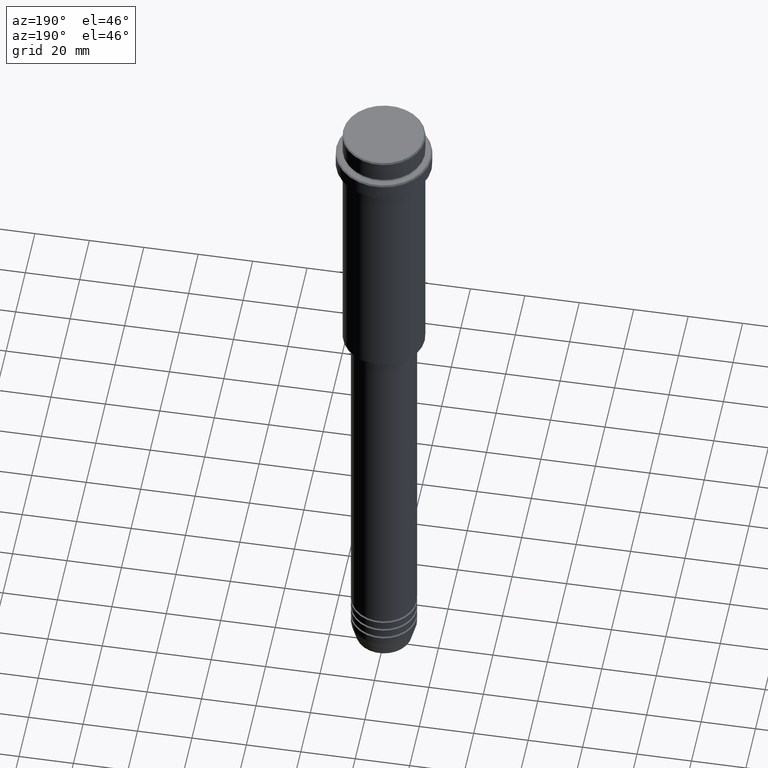
[diagram: clean part render]
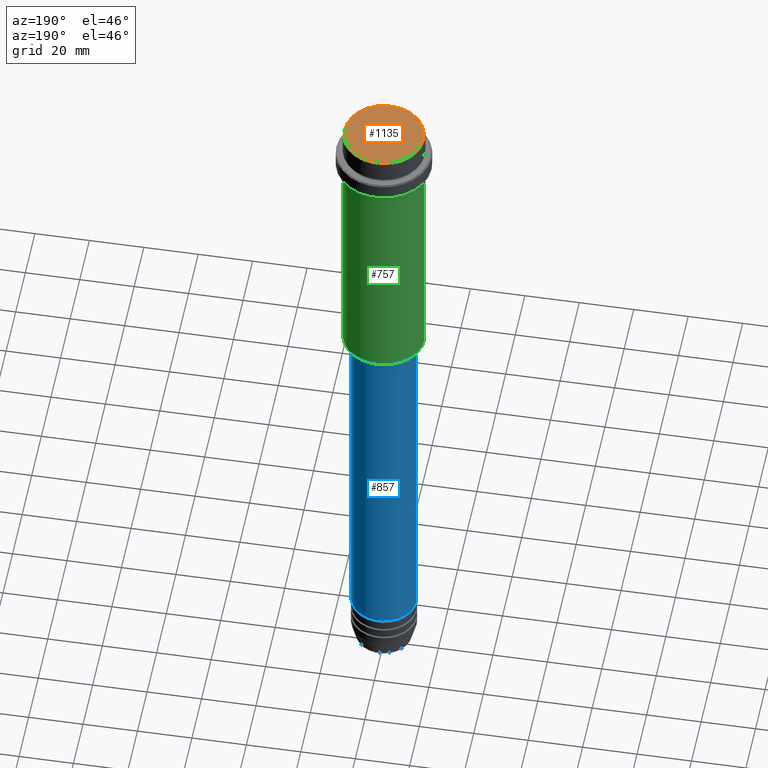
[diagram: same view with three faces highlighted in distinct colors, each labeled with its STEP entity id]
A machine part, auxiliary view with three faces highlighted in distinct colors.
Their STEP definitions:

[orange] entity #1135 — the highlighted planar face has unit normal (0, -0, 1).
#27 = PLANE ( 'NONE',  #271 ) ;
#42 = CIRCLE ( 'NONE', #289, 14.49999999999998401 ) ;
#154 = AXIS2_PLACEMENT_3D ( 'NONE', #1205, #1317, #1129 ) ;
#228 = EDGE_CURVE ( 'NONE', #1347, #1221, #836, .T. ) ;
#271 = AXIS2_PLACEMENT_3D ( 'NONE', #326, #463, #320 ) ;
#289 = AXIS2_PLACEMENT_3D ( 'NONE', #772, #986, #450 ) ;
#320 = DIRECTION ( 'NONE',  ( 1.000000000000000000, 0.000000000000000000, 0.000000000000000000 ) ) ;
#325 = EDGE_LOOP ( 'NONE', ( #684, #1090 ) ) ;
#326 = CARTESIAN_POINT ( 'NONE',  ( 0.000000000000000000, 0.000000000000000000, 0.000000000000000000 ) ) ;
#450 = DIRECTION ( 'NONE',  ( 1.000000000000000000, 0.000000000000000000, 0.000000000000000000 ) ) ;
#463 = DIRECTION ( 'NONE',  ( 0.000000000000000000, -0.000000000000000000, 1.000000000000000000 ) ) ;
#623 = EDGE_CURVE ( 'NONE', #1221, #1347, #42, .T. ) ;
#684 = ORIENTED_EDGE ( 'NONE', *, *, #228, .T. ) ;
#716 = CARTESIAN_POINT ( 'NONE',  ( -14.49999999999998401, 0.000000000000000000, 0.000000000000000000 ) ) ;
#772 = CARTESIAN_POINT ( 'NONE',  ( 0.000000000000000000, 0.000000000000000000, 0.000000000000000000 ) ) ;
#836 = CIRCLE ( 'NONE', #154, 14.49999999999998401 ) ;
#986 = DIRECTION ( 'NONE',  ( -0.000000000000000000, -0.000000000000000000, 1.000000000000000000 ) ) ;
#1090 = ORIENTED_EDGE ( 'NONE', *, *, #623, .T. ) ;
#1129 = DIRECTION ( 'NONE',  ( 1.000000000000000000, 0.000000000000000000, 0.000000000000000000 ) ) ;
#1135 = ADVANCED_FACE ( 'NONE', ( #1307 ), #27, .T. ) ;
#1145 = CARTESIAN_POINT ( 'NONE',  ( 14.49999999999998401, 1.806354028742345013E-15, 0.000000000000000000 ) ) ;
#1205 = CARTESIAN_POINT ( 'NONE',  ( 0.000000000000000000, 0.000000000000000000, 0.000000000000000000 ) ) ;
#1221 = VERTEX_POINT ( 'NONE', #1145 ) ;
#1307 = FACE_OUTER_BOUND ( 'NONE', #325, .T. ) ;
#1317 = DIRECTION ( 'NONE',  ( -0.000000000000000000, -0.000000000000000000, 1.000000000000000000 ) ) ;
#1347 = VERTEX_POINT ( 'NONE', #716 ) ;

[blue] entity #857 — the highlighted cylindrical surface (edge-blend (fillet) strip) has radius 12 mm, axis along (-0, -0, 1).
#31 = EDGE_CURVE ( 'NONE', #170, #162, #1386, .T. ) ;
#36 = CARTESIAN_POINT ( 'NONE',  ( 12.00000000000000000, 0.000000000000000000, -240.9999999999999147 ) ) ;
#45 = AXIS2_PLACEMENT_3D ( 'NONE', #848, #1379, #734 ) ;
#74 = EDGE_CURVE ( 'NONE', #170, #969, #292, .T. ) ;
#162 = VERTEX_POINT ( 'NONE', #559 ) ;
#170 = VERTEX_POINT ( 'NONE', #36 ) ;
#172 = FACE_OUTER_BOUND ( 'NONE', #1273, .T. ) ;
#233 = CARTESIAN_POINT ( 'NONE',  ( -12.00000000000000000, 1.469576158976823947E-15, 0.000000000000000000 ) ) ;
#243 = CIRCLE ( 'NONE', #1232, 11.99999999999999822 ) ;
#292 = LINE ( 'NONE', #1282, #1318 ) ;
#327 = ORIENTED_EDGE ( 'NONE', *, *, #535, .F. ) ;
#393 = ORIENTED_EDGE ( 'NONE', *, *, #601, .T. ) ;
#416 = CARTESIAN_POINT ( 'NONE',  ( 0.000000000000000000, 0.000000000000000000, -240.9999999999999147 ) ) ;
#493 = AXIS2_PLACEMENT_3D ( 'NONE', #416, #1398, #1409 ) ;
#533 = DIRECTION ( 'NONE',  ( 1.000000000000000000, 0.000000000000000000, 0.000000000000000000 ) ) ;
#535 = EDGE_CURVE ( 'NONE', #969, #755, #243, .T. ) ;
#559 = CARTESIAN_POINT ( 'NONE',  ( -12.00000000000000000, 1.469576158976823947E-15, -240.9999999999999147 ) ) ;
#601 = EDGE_CURVE ( 'NONE', #162, #755, #900, .T. ) ;
#621 = CARTESIAN_POINT ( 'NONE',  ( 0.000000000000000000, 0.000000000000000000, -106.0000000000000142 ) ) ;
#644 = DIRECTION ( 'NONE',  ( -0.000000000000000000, -0.000000000000000000, 1.000000000000000000 ) ) ;
#734 = DIRECTION ( 'NONE',  ( 1.000000000000000000, 0.000000000000000000, 0.000000000000000000 ) ) ;
#755 = VERTEX_POINT ( 'NONE', #1138 ) ;
#848 = CARTESIAN_POINT ( 'NONE',  ( 0.000000000000000000, 0.000000000000000000, 0.000000000000000000 ) ) ;
#857 = ADVANCED_FACE ( 'NONE', ( #172 ), #946, .T. ) ;
#900 = LINE ( 'NONE', #233, #1366 ) ;
#946 = CYLINDRICAL_SURFACE ( 'NONE', #45, 12.00000000000000000 ) ;
#969 = VERTEX_POINT ( 'NONE', #1270 ) ;
#983 = ORIENTED_EDGE ( 'NONE', *, *, #74, .F. ) ;
#1094 = DIRECTION ( 'NONE',  ( -0.000000000000000000, -0.000000000000000000, 1.000000000000000000 ) ) ;
#1138 = CARTESIAN_POINT ( 'NONE',  ( -11.99999999999999822, 1.469576158976823750E-15, -106.0000000000000142 ) ) ;
#1232 = AXIS2_PLACEMENT_3D ( 'NONE', #621, #644, #533 ) ;
#1270 = CARTESIAN_POINT ( 'NONE',  ( 11.99999999999999822, 0.000000000000000000, -106.0000000000000142 ) ) ;
#1273 = EDGE_LOOP ( 'NONE', ( #1383, #393, #327, #983 ) ) ;
#1282 = CARTESIAN_POINT ( 'NONE',  ( 12.00000000000000000, 0.000000000000000000, 0.000000000000000000 ) ) ;
#1285 = DIRECTION ( 'NONE',  ( -0.000000000000000000, -0.000000000000000000, 1.000000000000000000 ) ) ;
#1318 = VECTOR ( 'NONE', #1285, 1000.000000000000000 ) ;
#1366 = VECTOR ( 'NONE', #1094, 1000.000000000000000 ) ;
#1379 = DIRECTION ( 'NONE',  ( -0.000000000000000000, -0.000000000000000000, 1.000000000000000000 ) ) ;
#1383 = ORIENTED_EDGE ( 'NONE', *, *, #31, .T. ) ;
#1386 = CIRCLE ( 'NONE', #493, 12.00000000000000000 ) ;
#1398 = DIRECTION ( 'NONE',  ( -0.000000000000000000, -0.000000000000000000, 1.000000000000000000 ) ) ;
#1409 = DIRECTION ( 'NONE',  ( 1.000000000000000000, 0.000000000000000000, 0.000000000000000000 ) ) ;

[green] entity #757 — the highlighted cylindrical surface (partial cylindrical patch) has radius 15 mm, axis along (-0, -0, 1).
#6 = VERTEX_POINT ( 'NONE', #980 ) ;
#64 = EDGE_CURVE ( 'NONE', #302, #1378, #964, .T. ) ;
#95 = DIRECTION ( 'NONE',  ( -1.000000000000000000, 0.000000000000000000, 0.000000000000000000 ) ) ;
#147 = AXIS2_PLACEMENT_3D ( 'NONE', #471, #933, #498 ) ;
#160 = DIRECTION ( 'NONE',  ( 1.000000000000000000, 0.000000000000000000, 0.000000000000000000 ) ) ;
#165 = DIRECTION ( 'NONE',  ( -0.000000000000000000, -0.000000000000000000, 1.000000000000000000 ) ) ;
#265 = CARTESIAN_POINT ( 'NONE',  ( 0.000000000000000000, 0.000000000000000000, -16.00000000000000000 ) ) ;
#280 = ORIENTED_EDGE ( 'NONE', *, *, #927, .T. ) ;
#287 = DIRECTION ( 'NONE',  ( -0.000000000000000000, -0.000000000000000000, 1.000000000000000000 ) ) ;
#302 = VERTEX_POINT ( 'NONE', #616 ) ;
#332 = ORIENTED_EDGE ( 'NONE', *, *, #64, .F. ) ;
#341 = ORIENTED_EDGE ( 'NONE', *, *, #982, .T. ) ;
#424 = EDGE_LOOP ( 'NONE', ( #280, #341, #1353, #332 ) ) ;
#428 = CARTESIAN_POINT ( 'NONE',  ( 15.00000000000000000, 0.000000000000000000, 0.000000000000000000 ) ) ;
#471 = CARTESIAN_POINT ( 'NONE',  ( 0.000000000000000000, 0.000000000000000000, 0.000000000000000000 ) ) ;
#498 = DIRECTION ( 'NONE',  ( 1.000000000000000000, 0.000000000000000000, 0.000000000000000000 ) ) ;
#506 = LINE ( 'NONE', #940, #796 ) ;
#570 = AXIS2_PLACEMENT_3D ( 'NONE', #1055, #1179, #95 ) ;
#581 = CYLINDRICAL_SURFACE ( 'NONE', #147, 15.00000000000000000 ) ;
#616 = CARTESIAN_POINT ( 'NONE',  ( 15.00000000000000000, 0.000000000000000000, -104.4999999999999716 ) ) ;
#667 = CARTESIAN_POINT ( 'NONE',  ( -15.00000000000000355, 1.836970198721029983E-15, -16.00000000000000000 ) ) ;
#683 = CIRCLE ( 'NONE', #1073, 15.00000000000000178 ) ;
#700 = VECTOR ( 'NONE', #845, 1000.000000000000000 ) ;
#757 = ADVANCED_FACE ( 'NONE', ( #1017 ), #581, .T. ) ;
#796 = VECTOR ( 'NONE', #287, 1000.000000000000000 ) ;
#845 = DIRECTION ( 'NONE',  ( -0.000000000000000000, -0.000000000000000000, 1.000000000000000000 ) ) ;
#846 = CARTESIAN_POINT ( 'NONE',  ( 15.00000000000000178, 0.000000000000000000, -16.00000000000000000 ) ) ;
#927 = EDGE_CURVE ( 'NONE', #302, #6, #1252, .T. ) ;
#933 = DIRECTION ( 'NONE',  ( -0.000000000000000000, -0.000000000000000000, 1.000000000000000000 ) ) ;
#940 = CARTESIAN_POINT ( 'NONE',  ( -15.00000000000000000, 1.836970198721029589E-15, 0.000000000000000000 ) ) ;
#964 = LINE ( 'NONE', #428, #700 ) ;
#980 = CARTESIAN_POINT ( 'NONE',  ( -15.00000000000000000, 1.836970198721029589E-15, -104.4999999999999716 ) ) ;
#982 = EDGE_CURVE ( 'NONE', #6, #1010, #506, .T. ) ;
#1010 = VERTEX_POINT ( 'NONE', #667 ) ;
#1017 = FACE_OUTER_BOUND ( 'NONE', #424, .T. ) ;
#1055 = CARTESIAN_POINT ( 'NONE',  ( 0.000000000000000000, 0.000000000000000000, -104.4999999999999716 ) ) ;
#1073 = AXIS2_PLACEMENT_3D ( 'NONE', #265, #165, #160 ) ;
#1179 = DIRECTION ( 'NONE',  ( -0.000000000000000000, -0.000000000000000000, 1.000000000000000000 ) ) ;
#1252 = CIRCLE ( 'NONE', #570, 15.00000000000000000 ) ;
#1281 = EDGE_CURVE ( 'NONE', #1378, #1010, #683, .T. ) ;
#1353 = ORIENTED_EDGE ( 'NONE', *, *, #1281, .F. ) ;
#1378 = VERTEX_POINT ( 'NONE', #846 ) ;